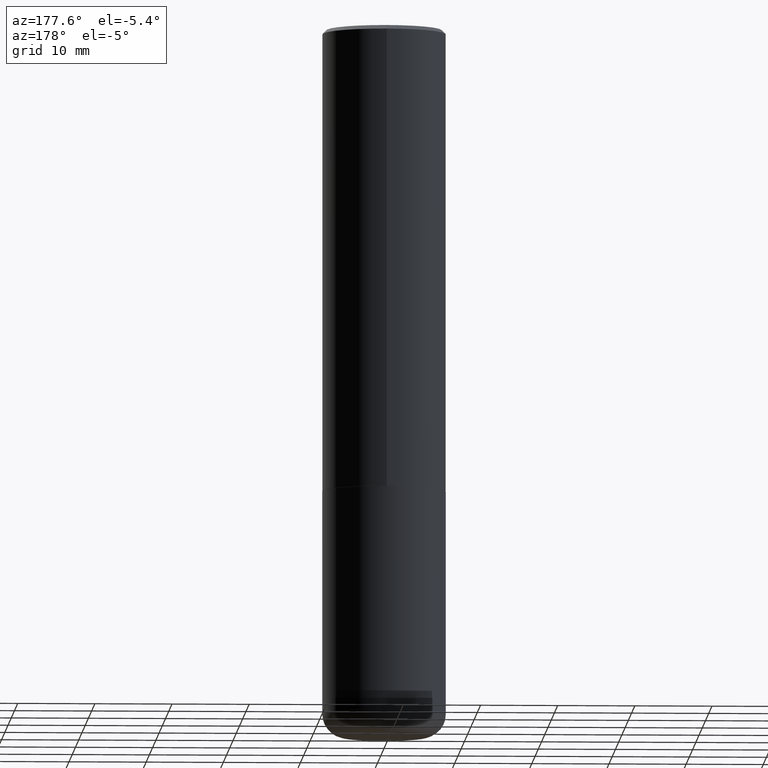
[diagram: clean part render]
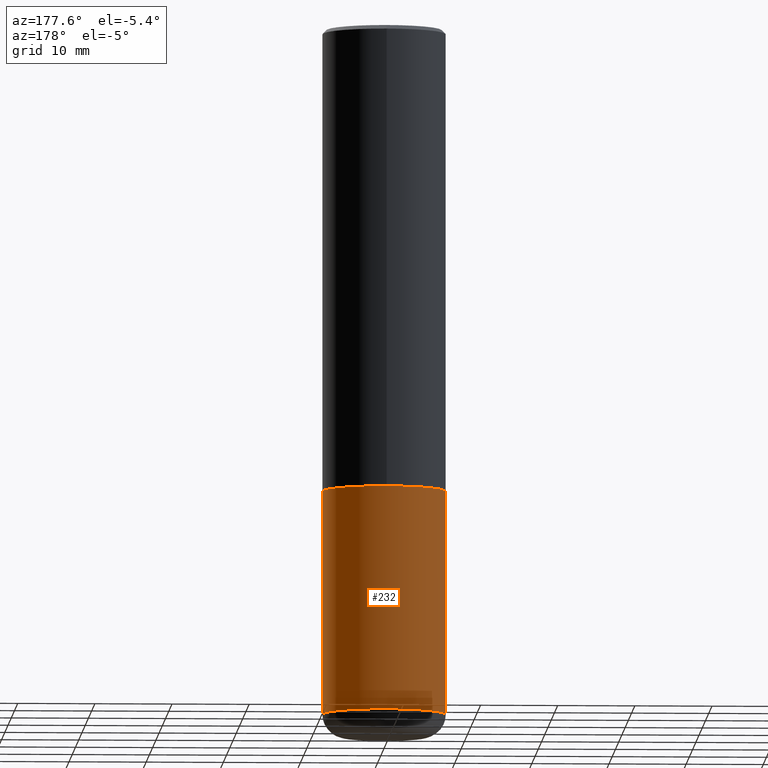
[diagram: same view with one face highlighted and labeled with its STEP entity id]
A machine part, auxiliary view. The second image highlights one B-rep face of the part: STEP entity #232.
In plain terms, the highlighted cylindrical surface (partial cylindrical patch) has radius 7.9997 mm, axis along (-0, 0, 1).
Its self-contained STEP definition (entity closure, byte-faithful):
#8 = EDGE_LOOP ( 'NONE', ( #225, #343, #75, #331 ) ) ;
#30 = CARTESIAN_POINT ( 'NONE',  ( 0.3149500000000001743, -1.443308555850978931E-14, -3.503899999999999793 ) ) ;
#31 = EDGE_CURVE ( 'NONE', #299, #185, #258, .T. ) ;
#37 = DIRECTION ( 'NONE',  ( -2.445468806185136877E-29, 3.491481338843145188E-15, 1.000000000000000000 ) ) ;
#75 = ORIENTED_EDGE ( 'NONE', *, *, #211, .F. ) ;
#84 = DIRECTION ( 'NONE',  ( -2.445468806185136597E-29, 3.491481338843145583E-15, 1.000000000000000000 ) ) ;
#100 = EDGE_CURVE ( 'NONE', #266, #283, #130, .T. ) ;
#116 = DIRECTION ( 'NONE',  ( 1.000000000000000000, -6.982962677686263555E-15, 0.000000000000000000 ) ) ;
#125 = CIRCLE ( 'NONE', #408, 0.3149500000000000077 ) ;
#130 = LINE ( 'NONE', #288, #317 ) ;
#134 = VECTOR ( 'NONE', #37, 39.37007874015748143 ) ;
#142 = CYLINDRICAL_SURFACE ( 'NONE', #217, 0.3149500000000000077 ) ;
#155 = AXIS2_PLACEMENT_3D ( 'NONE', #394, #269, #329 ) ;
#166 = CARTESIAN_POINT ( 'NONE',  ( 0.3149500000000000077, -2.199284095337289871E-15, 1.535751875536930130E-29 ) ) ;
#167 = DIRECTION ( 'NONE',  ( 1.000000000000000000, -6.982962677686266711E-15, 4.876176775795936353E-29 ) ) ;
#182 = CARTESIAN_POINT ( 'NONE',  ( -0.3149500000000001743, -9.995947116896060296E-15, -3.503899999999999793 ) ) ;
#185 = VERTEX_POINT ( 'NONE', #347 ) ;
#211 = EDGE_CURVE ( 'NONE', #185, #283, #246, .T. ) ;
#217 = AXIS2_PLACEMENT_3D ( 'NONE', #268, #84, #167 ) ;
#225 = ORIENTED_EDGE ( 'NONE', *, *, #375, .T. ) ;
#232 = ADVANCED_FACE ( 'NONE', ( #357 ), #142, .T. ) ;
#246 = CIRCLE ( 'NONE', #155, 0.3149500000000000077 ) ;
#258 = LINE ( 'NONE', #166, #134 ) ;
#264 = CARTESIAN_POINT ( 'NONE',  ( 8.568678149992099474E-29, -1.223380146317249786E-14, -3.503899999999999793 ) ) ;
#266 = VERTEX_POINT ( 'NONE', #182 ) ;
#268 = CARTESIAN_POINT ( 'NONE',  ( 0.000000000000000000, 0.000000000000000000, 0.000000000000000000 ) ) ;
#269 = DIRECTION ( 'NONE',  ( -2.445468806185136597E-29, 3.491481338843145583E-15, 1.000000000000000000 ) ) ;
#283 = VERTEX_POINT ( 'NONE', #398 ) ;
#288 = CARTESIAN_POINT ( 'NONE',  ( -0.3149500000000000077, 2.237854346276435590E-15, -1.549218606675782676E-29 ) ) ;
#299 = VERTEX_POINT ( 'NONE', #30 ) ;
#317 = VECTOR ( 'NONE', #374, 39.37007874015748143 ) ;
#329 = DIRECTION ( 'NONE',  ( 1.000000000000000000, -6.982962677686266711E-15, 0.000000000000000000 ) ) ;
#331 = ORIENTED_EDGE ( 'NONE', *, *, #31, .F. ) ;
#343 = ORIENTED_EDGE ( 'NONE', *, *, #100, .T. ) ;
#347 = CARTESIAN_POINT ( 'NONE',  ( 0.3149500000000000077, -1.044686131395256792E-14, -2.362199999999999633 ) ) ;
#357 = FACE_OUTER_BOUND ( 'NONE', #8, .T. ) ;
#374 = DIRECTION ( 'NONE',  ( -2.445468806185136877E-29, 3.491481338843145188E-15, 1.000000000000000000 ) ) ;
#375 = EDGE_CURVE ( 'NONE', #299, #266, #125, .T. ) ;
#389 = DIRECTION ( 'NONE',  ( -2.445468806185136597E-29, 3.491481338843145583E-15, 1.000000000000000000 ) ) ;
#394 = CARTESIAN_POINT ( 'NONE',  ( 5.776686413970529753E-29, -8.247577218615278049E-15, -2.362199999999999633 ) ) ;
#398 = CARTESIAN_POINT ( 'NONE',  ( -0.3149500000000000077, -8.002834994617451969E-15, -2.362199999999999633 ) ) ;
#408 = AXIS2_PLACEMENT_3D ( 'NONE', #264, #389, #116 ) ;